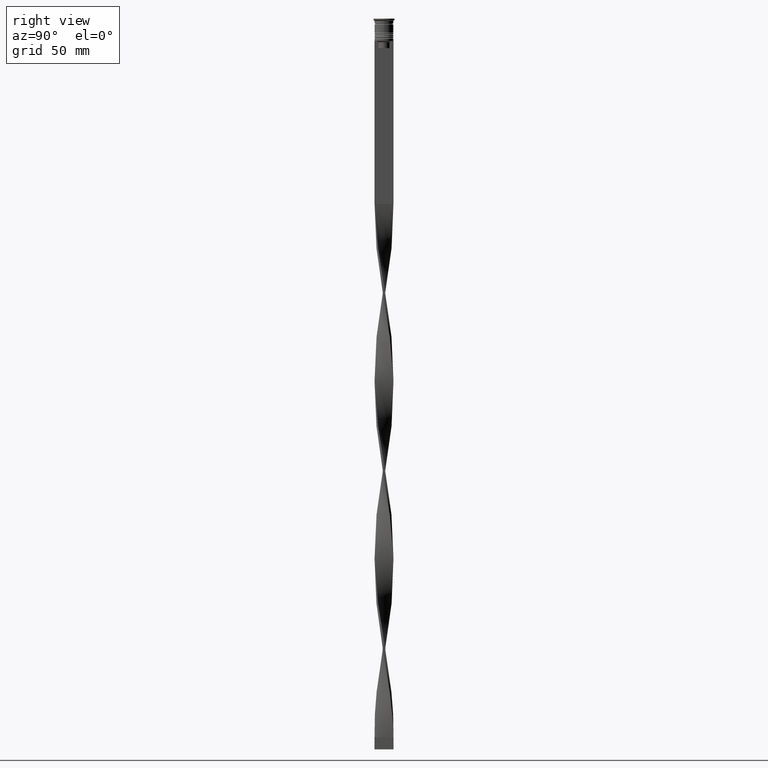
[diagram: clean part render]
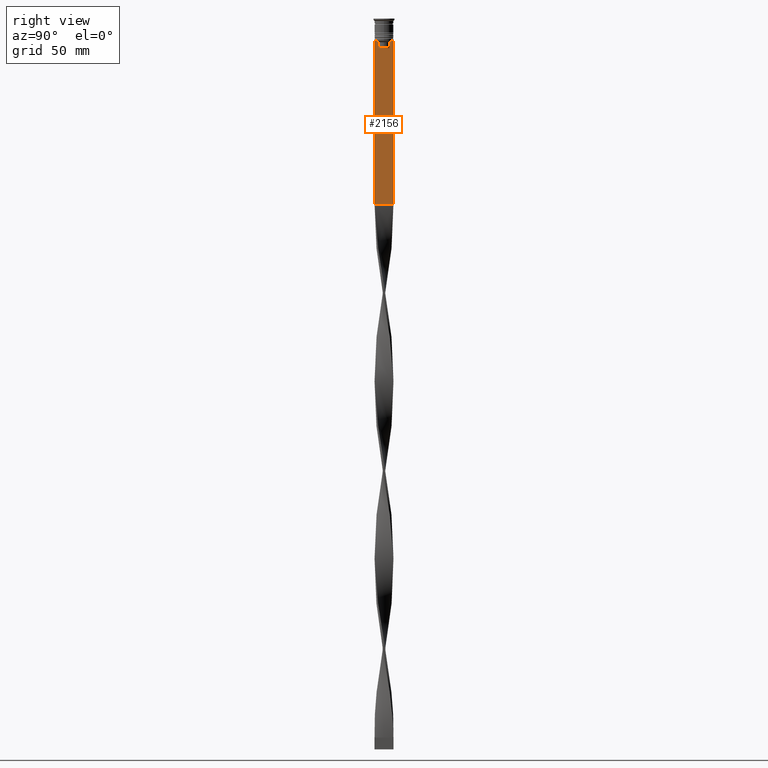
[diagram: same view with one face highlighted and labeled with its STEP entity id]
A machine part, right view. The second image highlights one B-rep face of the part: STEP entity #2156.
In plain terms, the highlighted planar face has unit normal (-1, 0, 0).
Its self-contained STEP definition (entity closure, byte-faithful):
#84 = DIRECTION ( 'NONE',  ( 0.000000000000000000, 1.000000000000000000, 0.000000000000000000 ) ) ;
#120 = ORIENTED_EDGE ( 'NONE', *, *, #3261, .T. ) ;
#126 = CARTESIAN_POINT ( 'NONE',  ( 0.5000000000000000000, -2.517408374291112416, -9.833662228483172285 ) ) ;
#134 = CARTESIAN_POINT ( 'NONE',  ( 0.5000000000000000000, 2.347338918861097135, -12.50000000000000000 ) ) ;
#203 = CARTESIAN_POINT ( 'NONE',  ( 0.5000000000000000000, -4.000000000000000000, -1.437742251701450202 ) ) ;
#216 = ORIENTED_EDGE ( 'NONE', *, *, #1003, .T. ) ;
#220 = DIRECTION ( 'NONE',  ( 0.000000000000000000, -1.000000000000000000, 0.000000000000000000 ) ) ;
#278 = CARTESIAN_POINT ( 'NONE',  ( 0.5000000000000000000, 4.000000000000000000, -9.500000000000000000 ) ) ;
#349 = VERTEX_POINT ( 'NONE', #2808 ) ;
#382 = LINE ( 'NONE', #1901, #1061 ) ;
#400 = VECTOR ( 'NONE', #546, 1000.000000000000000 ) ;
#446 = CARTESIAN_POINT ( 'NONE',  ( 0.5000000000000000000, -4.000000000000000000, -1.437742251701450202 ) ) ;
#486 = DIRECTION ( 'NONE',  ( -0.000000000000000000, -0.000000000000000000, 1.000000000000000000 ) ) ;
#546 = DIRECTION ( 'NONE',  ( 0.000000000000000000, -1.000000000000000000, 0.000000000000000000 ) ) ;
#643 = CARTESIAN_POINT ( 'NONE',  ( 0.5000000000000000000, -4.000000000000000000, -9.500000000000000000 ) ) ;
#897 = B_SPLINE_CURVE_WITH_KNOTS ( 'NONE', 3,
 ( #1064, #3877, #3281, #1756 ),
 .UNSPECIFIED., .F., .F.,
 ( 4, 4 ),
 ( 0.004956812174141191595, 0.005670477137898149653 ),
 .UNSPECIFIED. ) ;
#925 = VECTOR ( 'NONE', #3120, 1000.000000000000000 ) ;
#933 = VECTOR ( 'NONE', #1117, 1000.000000000000000 ) ;
#1003 = EDGE_CURVE ( 'NONE', #2814, #1186, #3678, .T. ) ;
#1061 = VECTOR ( 'NONE', #3830, 1000.000000000000000 ) ;
#1064 = CARTESIAN_POINT ( 'NONE',  ( 0.5000000000000000000, 2.856571371417138572, -9.500000000000000000 ) ) ;
#1094 = LINE ( 'NONE', #3618, #2313 ) ;
#1096 = CARTESIAN_POINT ( 'NONE',  ( 0.5000000000000000000, -2.347338918861097135, -10.00000000000000000 ) ) ;
#1116 = DIRECTION ( 'NONE',  ( 0.000000000000000000, 0.000000000000000000, 1.000000000000000000 ) ) ;
#1117 = DIRECTION ( 'NONE',  ( 0.000000000000000000, 0.000000000000000000, -1.000000000000000000 ) ) ;
#1138 = VECTOR ( 'NONE', #220, 1000.000000000000000 ) ;
#1186 = VERTEX_POINT ( 'NONE', #3096 ) ;
#1260 = VECTOR ( 'NONE', #2968, 1000.000000000000000 ) ;
#1296 = CARTESIAN_POINT ( 'NONE',  ( 0.5000000000000000000, -3.867815921162741422, -9.500000000000000000 ) ) ;
#1347 = LINE ( 'NONE', #3139, #1138 ) ;
#1354 = VERTEX_POINT ( 'NONE', #1296 ) ;
#1411 = CARTESIAN_POINT ( 'NONE',  ( 0.5000000000000000000, -2.687095498514037839, -9.666937905752043037 ) ) ;
#1419 = CARTESIAN_POINT ( 'NONE',  ( 0.5000000000000000000, 2.399999999999996803, -12.50000000000000000 ) ) ;
#1477 = CARTESIAN_POINT ( 'NONE',  ( 0.5000000000000000000, -2.856571371417138572, -9.500000000000000000 ) ) ;
#1485 = EDGE_CURVE ( 'NONE', #3077, #2814, #2177, .T. ) ;
#1512 = LINE ( 'NONE', #1885, #3907 ) ;
#1547 = ORIENTED_EDGE ( 'NONE', *, *, #3227, .T. ) ;
#1559 = VERTEX_POINT ( 'NONE', #134 ) ;
#1721 = EDGE_LOOP ( 'NONE', ( #216, #1913, #2719, #2222, #1547, #2633, #120, #1947, #3366, #2962, #2616, #4062 ) ) ;
#1756 = CARTESIAN_POINT ( 'NONE',  ( 0.5000000000000000000, 2.347338918861097135, -10.00000000000000000 ) ) ;
#1792 = AXIS2_PLACEMENT_3D ( 'NONE', #203, #3009, #1116 ) ;
#1814 = EDGE_CURVE ( 'NONE', #1559, #4058, #1841, .T. ) ;
#1841 = LINE ( 'NONE', #1419, #2371 ) ;
#1885 = CARTESIAN_POINT ( 'NONE',  ( 0.5000000000000000000, -4.000000000000000000, -78.50000000000000000 ) ) ;
#1901 = CARTESIAN_POINT ( 'NONE',  ( 0.5000000000000000000, 4.000000000000000000, -1.437742251701450202 ) ) ;
#1913 = ORIENTED_EDGE ( 'NONE', *, *, #2722, .T. ) ;
#1924 = CARTESIAN_POINT ( 'NONE',  ( 0.5000000000000000000, -4.000000000000000000, -9.500000000000000000 ) ) ;
#1934 = EDGE_CURVE ( 'NONE', #2220, #3849, #1512, .T. ) ;
#1947 = ORIENTED_EDGE ( 'NONE', *, *, #2136, .T. ) ;
#1954 = EDGE_CURVE ( 'NONE', #3077, #3849, #382, .T. ) ;
#1958 = LINE ( 'NONE', #2040, #3648 ) ;
#2022 = PLANE ( 'NONE',  #1792 ) ;
#2040 = CARTESIAN_POINT ( 'NONE',  ( 0.5000000000000000000, -2.347338918861097135, 0.000000000000000000 ) ) ;
#2099 = CARTESIAN_POINT ( 'NONE',  ( 0.5000000000000000000, -4.000000000000000000, -9.500000000000000000 ) ) ;
#2136 = EDGE_CURVE ( 'NONE', #1354, #2523, #2872, .T. ) ;
#2152 = EDGE_CURVE ( 'NONE', #349, #3949, #3956, .T. ) ;
#2156 = ADVANCED_FACE ( 'NONE', ( #3318 ), #2022, .F. ) ;
#2177 = LINE ( 'NONE', #4077, #925 ) ;
#2220 = VERTEX_POINT ( 'NONE', #3620 ) ;
#2222 = ORIENTED_EDGE ( 'NONE', *, *, #1814, .T. ) ;
#2313 = VECTOR ( 'NONE', #3581, 1000.000000000000000 ) ;
#2371 = VECTOR ( 'NONE', #2505, 1000.000000000000000 ) ;
#2436 = CARTESIAN_POINT ( 'NONE',  ( 0.5000000000000000000, 3.867815921162741422, -9.500000000000000000 ) ) ;
#2504 = VERTEX_POINT ( 'NONE', #3473 ) ;
#2505 = DIRECTION ( 'NONE',  ( 0.000000000000000000, -1.000000000000000000, 0.000000000000000000 ) ) ;
#2523 = VERTEX_POINT ( 'NONE', #643 ) ;
#2616 = ORIENTED_EDGE ( 'NONE', *, *, #1954, .F. ) ;
#2633 = ORIENTED_EDGE ( 'NONE', *, *, #2152, .T. ) ;
#2719 = ORIENTED_EDGE ( 'NONE', *, *, #3205, .T. ) ;
#2722 = EDGE_CURVE ( 'NONE', #1186, #2504, #897, .T. ) ;
#2808 = CARTESIAN_POINT ( 'NONE',  ( 0.5000000000000000000, -2.347338918861097135, -10.00000000000000000 ) ) ;
#2814 = VERTEX_POINT ( 'NONE', #2436 ) ;
#2872 = LINE ( 'NONE', #1924, #1260 ) ;
#2962 = ORIENTED_EDGE ( 'NONE', *, *, #1934, .T. ) ;
#2968 = DIRECTION ( 'NONE',  ( 0.000000000000000000, -1.000000000000000000, 0.000000000000000000 ) ) ;
#2974 = CARTESIAN_POINT ( 'NONE',  ( 0.5000000000000000000, 4.000000000000000000, -78.50000000000000000 ) ) ;
#2990 = CARTESIAN_POINT ( 'NONE',  ( 0.5000000000000000000, -2.856571371417138572, -9.500000000000000000 ) ) ;
#3009 = DIRECTION ( 'NONE',  ( -1.000000000000000000, 0.000000000000000000, 0.000000000000000000 ) ) ;
#3011 = EDGE_CURVE ( 'NONE', #2523, #2220, #3959, .T. ) ;
#3077 = VERTEX_POINT ( 'NONE', #278 ) ;
#3096 = CARTESIAN_POINT ( 'NONE',  ( 0.5000000000000000000, 2.856571371417138572, -9.500000000000000000 ) ) ;
#3120 = DIRECTION ( 'NONE',  ( 0.000000000000000000, -1.000000000000000000, 0.000000000000000000 ) ) ;
#3139 = CARTESIAN_POINT ( 'NONE',  ( 0.5000000000000000000, -4.000000000000000000, -9.500000000000000000 ) ) ;
#3205 = EDGE_CURVE ( 'NONE', #2504, #1559, #1094, .T. ) ;
#3227 = EDGE_CURVE ( 'NONE', #4058, #349, #1958, .T. ) ;
#3261 = EDGE_CURVE ( 'NONE', #3949, #1354, #1347, .T. ) ;
#3281 = CARTESIAN_POINT ( 'NONE',  ( 0.5000000000000000000, 2.517407211010872281, -9.833663366238582171 ) ) ;
#3318 = FACE_OUTER_BOUND ( 'NONE', #1721, .T. ) ;
#3366 = ORIENTED_EDGE ( 'NONE', *, *, #3011, .T. ) ;
#3473 = CARTESIAN_POINT ( 'NONE',  ( 0.5000000000000000000, 2.347338918861097135, -10.00000000000000000 ) ) ;
#3581 = DIRECTION ( 'NONE',  ( 0.000000000000000000, 0.000000000000000000, -1.000000000000000000 ) ) ;
#3618 = CARTESIAN_POINT ( 'NONE',  ( 0.5000000000000000000, 2.347338918861097135, 0.000000000000000000 ) ) ;
#3620 = CARTESIAN_POINT ( 'NONE',  ( 0.5000000000000000000, -4.000000000000000000, -78.50000000000000000 ) ) ;
#3648 = VECTOR ( 'NONE', #486, 1000.000000000000000 ) ;
#3678 = LINE ( 'NONE', #2099, #400 ) ;
#3830 = DIRECTION ( 'NONE',  ( 0.000000000000000000, 0.000000000000000000, -1.000000000000000000 ) ) ;
#3849 = VERTEX_POINT ( 'NONE', #2974 ) ;
#3877 = CARTESIAN_POINT ( 'NONE',  ( 0.5000000000000000000, 2.687094542495898075, -9.666938847453439010 ) ) ;
#3907 = VECTOR ( 'NONE', #84, 1000.000000000000000 ) ;
#3949 = VERTEX_POINT ( 'NONE', #1477 ) ;
#3956 = B_SPLINE_CURVE_WITH_KNOTS ( 'NONE', 3,
 ( #1096, #126, #1411, #2990 ),
 .UNSPECIFIED., .F., .F.,
 ( 4, 4 ),
 ( 0.01178336557230038467, 0.01249758354768160280 ),
 .UNSPECIFIED. ) ;
#3959 = LINE ( 'NONE', #446, #933 ) ;
#4008 = CARTESIAN_POINT ( 'NONE',  ( 0.5000000000000000000, -2.347338918861097135, -12.50000000000000000 ) ) ;
#4058 = VERTEX_POINT ( 'NONE', #4008 ) ;
#4062 = ORIENTED_EDGE ( 'NONE', *, *, #1485, .T. ) ;
#4077 = CARTESIAN_POINT ( 'NONE',  ( 0.5000000000000000000, -4.000000000000000000, -9.500000000000000000 ) ) ;